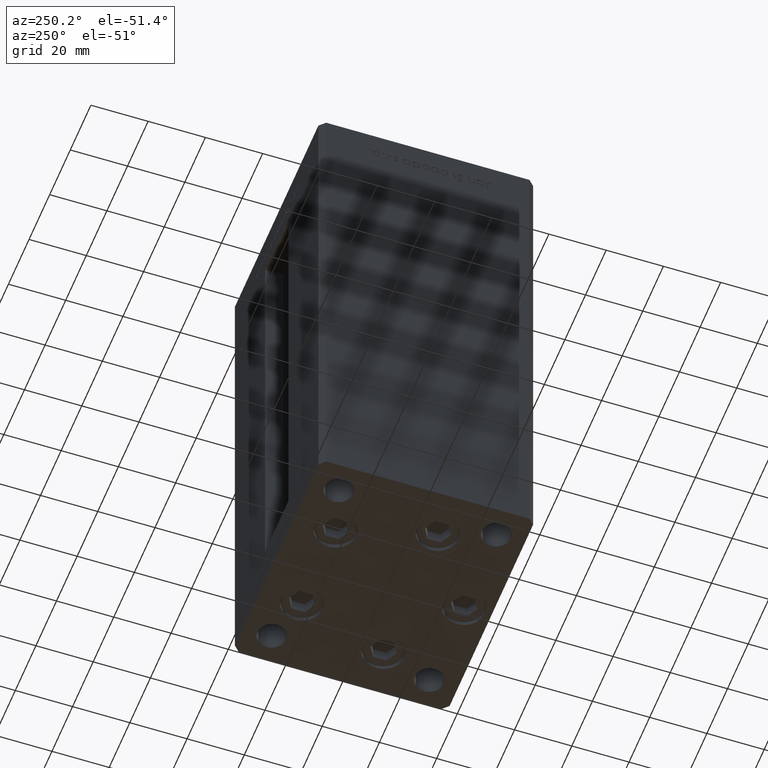
[diagram: clean part render]
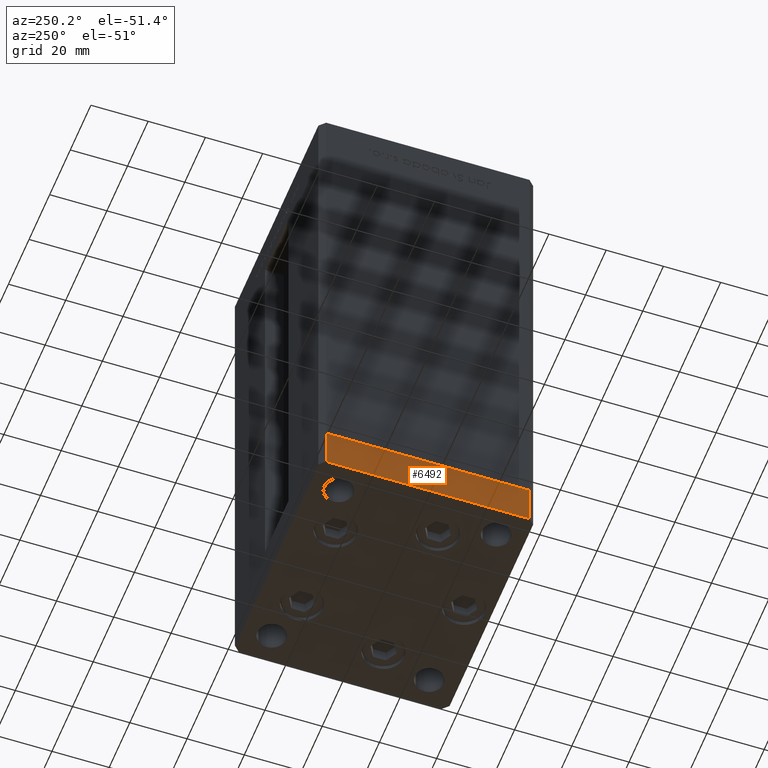
[diagram: same view with one face highlighted and labeled with its STEP entity id]
A machine part, auxiliary view. The second image highlights one B-rep face of the part: STEP entity #6492.
In plain terms, the highlighted planar face has unit normal (-1, 0, 0).
Its self-contained STEP definition (entity closure, byte-faithful):
#37 = CARTESIAN_POINT ( 'NONE',  ( 42.50000000000000711, -35.50000000000000000, 0.000000000000000000 ) ) ;
#4429 = CARTESIAN_POINT ( 'NONE',  ( 42.50000000000000711, -35.50000000000000000, -15.00000000000000000 ) ) ;
#5547 = EDGE_CURVE ( 'NONE', #35347, #37670, #16501, .T. ) ;
#6492 = ADVANCED_FACE ( 'NONE', ( #48496 ), #17029, .T. ) ;
#7898 = LINE ( 'NONE', #4429, #40609 ) ;
#7910 = CARTESIAN_POINT ( 'NONE',  ( 42.50000000000000711, -35.50000000000000000, -15.00000000000000000 ) ) ;
#8521 = DIRECTION ( 'NONE',  ( 1.000000000000000000, 1.172770800660376741E-15, -0.000000000000000000 ) ) ;
#8628 = ORIENTED_EDGE ( 'NONE', *, *, #48354, .F. ) ;
#9924 = EDGE_CURVE ( 'NONE', #35347, #41081, #7898, .T. ) ;
#10322 = EDGE_CURVE ( 'NONE', #37670, #44331, #47742, .T. ) ;
#11238 = DIRECTION ( 'NONE',  ( 0.000000000000000000, 0.000000000000000000, 1.000000000000000000 ) ) ;
#11784 = ORIENTED_EDGE ( 'NONE', *, *, #10322, .T. ) ;
#14955 = ORIENTED_EDGE ( 'NONE', *, *, #9924, .F. ) ;
#16272 = DIRECTION ( 'NONE',  ( -1.172770800660376741E-15, 1.000000000000000000, 0.000000000000000000 ) ) ;
#16501 = LINE ( 'NONE', #28738, #26143 ) ;
#17029 = PLANE ( 'NONE',  #51686 ) ;
#18484 = VECTOR ( 'NONE', #11238, 1000.000000000000000 ) ;
#20246 = CARTESIAN_POINT ( 'NONE',  ( 42.50000000000000711, -35.50000000000000000, -15.00000000000000000 ) ) ;
#20653 = DIRECTION ( 'NONE',  ( 0.000000000000000000, 0.000000000000000000, 1.000000000000000000 ) ) ;
#26143 = VECTOR ( 'NONE', #44222, 1000.000000000000000 ) ;
#28738 = CARTESIAN_POINT ( 'NONE',  ( 42.50000000000000711, -35.50000000000000000, -15.00000000000000000 ) ) ;
#29245 = CARTESIAN_POINT ( 'NONE',  ( 42.49999999999992895, 35.50000000000000000, 0.000000000000000000 ) ) ;
#30069 = CARTESIAN_POINT ( 'NONE',  ( 42.49999999999992895, 35.50000000000000000, -15.00000000000000000 ) ) ;
#35347 = VERTEX_POINT ( 'NONE', #7910 ) ;
#36515 = LINE ( 'NONE', #37, #48997 ) ;
#37501 = CARTESIAN_POINT ( 'NONE',  ( 42.50000000000000711, -35.50000000000000000, 0.000000000000000000 ) ) ;
#37670 = VERTEX_POINT ( 'NONE', #30069 ) ;
#40609 = VECTOR ( 'NONE', #20653, 1000.000000000000000 ) ;
#41081 = VERTEX_POINT ( 'NONE', #37501 ) ;
#41272 = DIRECTION ( 'NONE',  ( -1.172770800660376741E-15, 1.000000000000000000, 0.000000000000000000 ) ) ;
#44222 = DIRECTION ( 'NONE',  ( -1.172770800660376741E-15, 1.000000000000000000, 0.000000000000000000 ) ) ;
#44331 = VERTEX_POINT ( 'NONE', #29245 ) ;
#45570 = EDGE_LOOP ( 'NONE', ( #8628, #14955, #48130, #11784 ) ) ;
#46702 = CARTESIAN_POINT ( 'NONE',  ( 42.49999999999992895, 35.50000000000000000, -15.00000000000000000 ) ) ;
#47742 = LINE ( 'NONE', #46702, #18484 ) ;
#48130 = ORIENTED_EDGE ( 'NONE', *, *, #5547, .T. ) ;
#48354 = EDGE_CURVE ( 'NONE', #41081, #44331, #36515, .T. ) ;
#48496 = FACE_OUTER_BOUND ( 'NONE', #45570, .T. ) ;
#48997 = VECTOR ( 'NONE', #16272, 1000.000000000000000 ) ;
#51686 = AXIS2_PLACEMENT_3D ( 'NONE', #20246, #8521, #41272 ) ;